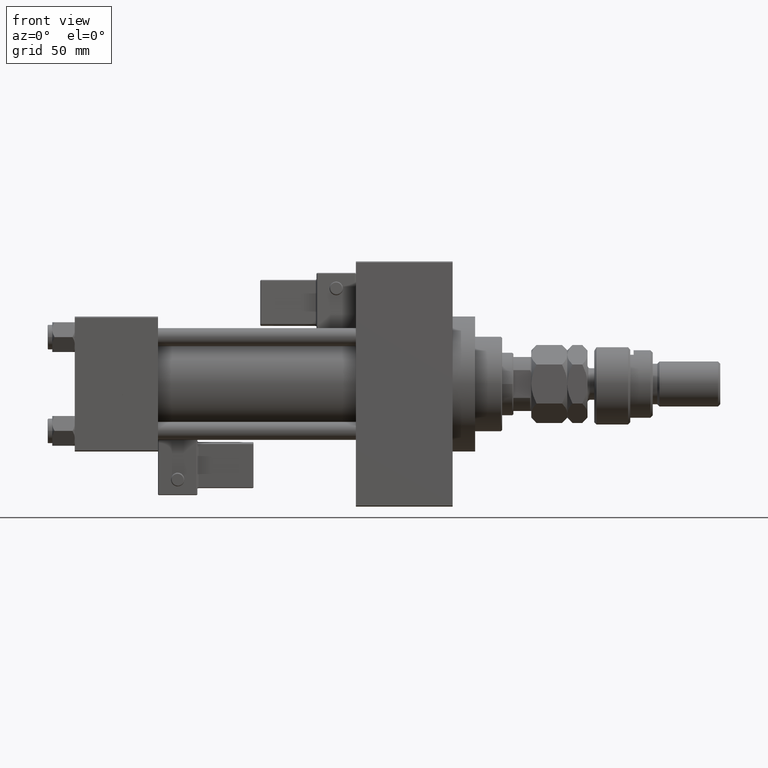
[diagram: clean part render]
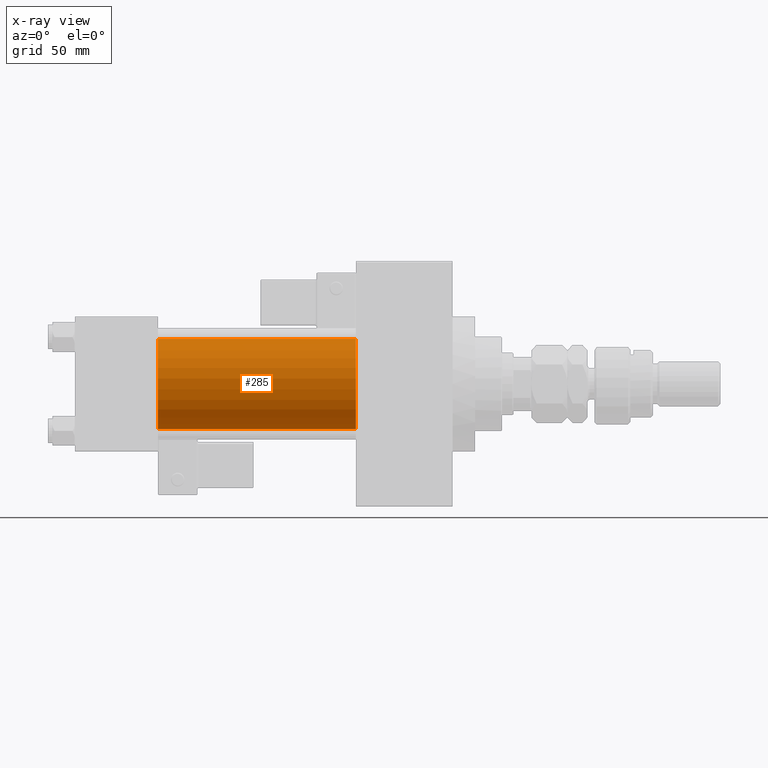
[diagram: x-ray — body ghosted, one internal face saturated and labeled with its STEP entity id]
A machine part, front view, then the same camera in x-ray: the body is ghosted and one INTERNAL B-rep face — a face not visible from any outside direction — is saturated and labeled: STEP entity #285.
In plain terms, the highlighted cylindrical surface (partial cylindrical patch) has radius 20 mm, axis along (-1, -0, -0).
Its self-contained STEP definition (entity closure, byte-faithful):
#285 = ADVANCED_FACE ( 'NONE', ( #28532 ), #45109, .F. ) ;
#4623 = DIRECTION ( 'NONE',  ( 0.000000000000000000, 0.000000000000000000, -1.000000000000000000 ) ) ;
#5099 = CARTESIAN_POINT ( 'NONE',  ( 125.0000000000000000, -2.602085213965210642E-15, 20.00000000000000000 ) ) ;
#5792 = CARTESIAN_POINT ( 'NONE',  ( 37.00000000000000000, -2.602085213965210642E-15, 20.00000000000000000 ) ) ;
#7442 = AXIS2_PLACEMENT_3D ( 'NONE', #51305, #45328, #4623 ) ;
#11113 = CARTESIAN_POINT ( 'NONE',  ( 125.0000000000000000, -2.602085213965210642E-15, 0.000000000000000000 ) ) ;
#11591 = LINE ( 'NONE', #40884, #18140 ) ;
#13072 = CARTESIAN_POINT ( 'NONE',  ( 125.0000000000000000, -1.527916156705042519E-16, -20.00000000000000000 ) ) ;
#14565 = EDGE_LOOP ( 'NONE', ( #47573, #15425, #44518, #44572 ) ) ;
#14970 = LINE ( 'NONE', #19655, #24960 ) ;
#15091 = EDGE_CURVE ( 'NONE', #20697, #36875, #14970, .T. ) ;
#15425 = ORIENTED_EDGE ( 'NONE', *, *, #15091, .T. ) ;
#15500 = DIRECTION ( 'NONE',  ( -1.000000000000000000, -0.000000000000000000, -0.000000000000000000 ) ) ;
#18140 = VECTOR ( 'NONE', #28456, 1000.000000000000000 ) ;
#19655 = CARTESIAN_POINT ( 'NONE',  ( 125.0000000000000000, -1.527916156705042519E-16, -20.00000000000000000 ) ) ;
#20238 = CARTESIAN_POINT ( 'NONE',  ( 37.00000000000000000, -2.602085213965210642E-15, 0.000000000000000000 ) ) ;
#20697 = VERTEX_POINT ( 'NONE', #13072 ) ;
#21734 = AXIS2_PLACEMENT_3D ( 'NONE', #11113, #24095, #52851 ) ;
#22458 = CIRCLE ( 'NONE', #7442, 20.00000000000000000 ) ;
#24095 = DIRECTION ( 'NONE',  ( -1.000000000000000000, -0.000000000000000000, -0.000000000000000000 ) ) ;
#24392 = DIRECTION ( 'NONE',  ( 0.000000000000000000, 0.000000000000000000, -1.000000000000000000 ) ) ;
#24960 = VECTOR ( 'NONE', #15500, 1000.000000000000000 ) ;
#27334 = EDGE_CURVE ( 'NONE', #31977, #36875, #37790, .T. ) ;
#28456 = DIRECTION ( 'NONE',  ( -1.000000000000000000, -0.000000000000000000, -0.000000000000000000 ) ) ;
#28532 = FACE_OUTER_BOUND ( 'NONE', #14565, .T. ) ;
#28544 = DIRECTION ( 'NONE',  ( 1.000000000000000000, 0.000000000000000000, 0.000000000000000000 ) ) ;
#31977 = VERTEX_POINT ( 'NONE', #5792 ) ;
#35302 = VERTEX_POINT ( 'NONE', #5099 ) ;
#36875 = VERTEX_POINT ( 'NONE', #48606 ) ;
#37790 = CIRCLE ( 'NONE', #53662, 20.00000000000000000 ) ;
#40197 = EDGE_CURVE ( 'NONE', #35302, #20697, #22458, .T. ) ;
#40884 = CARTESIAN_POINT ( 'NONE',  ( 125.0000000000000000, -2.602085213965210642E-15, 20.00000000000000000 ) ) ;
#44518 = ORIENTED_EDGE ( 'NONE', *, *, #27334, .F. ) ;
#44572 = ORIENTED_EDGE ( 'NONE', *, *, #46855, .F. ) ;
#45109 = CYLINDRICAL_SURFACE ( 'NONE', #21734, 20.00000000000000000 ) ;
#45328 = DIRECTION ( 'NONE',  ( 1.000000000000000000, 0.000000000000000000, 0.000000000000000000 ) ) ;
#46855 = EDGE_CURVE ( 'NONE', #35302, #31977, #11591, .T. ) ;
#47573 = ORIENTED_EDGE ( 'NONE', *, *, #40197, .T. ) ;
#48606 = CARTESIAN_POINT ( 'NONE',  ( 37.00000000000000000, -1.527916156705042519E-16, -20.00000000000000000 ) ) ;
#51305 = CARTESIAN_POINT ( 'NONE',  ( 125.0000000000000000, -2.602085213965210642E-15, 0.000000000000000000 ) ) ;
#52851 = DIRECTION ( 'NONE',  ( 0.000000000000000000, 0.000000000000000000, 1.000000000000000000 ) ) ;
#53662 = AXIS2_PLACEMENT_3D ( 'NONE', #20238, #28544, #24392 ) ;